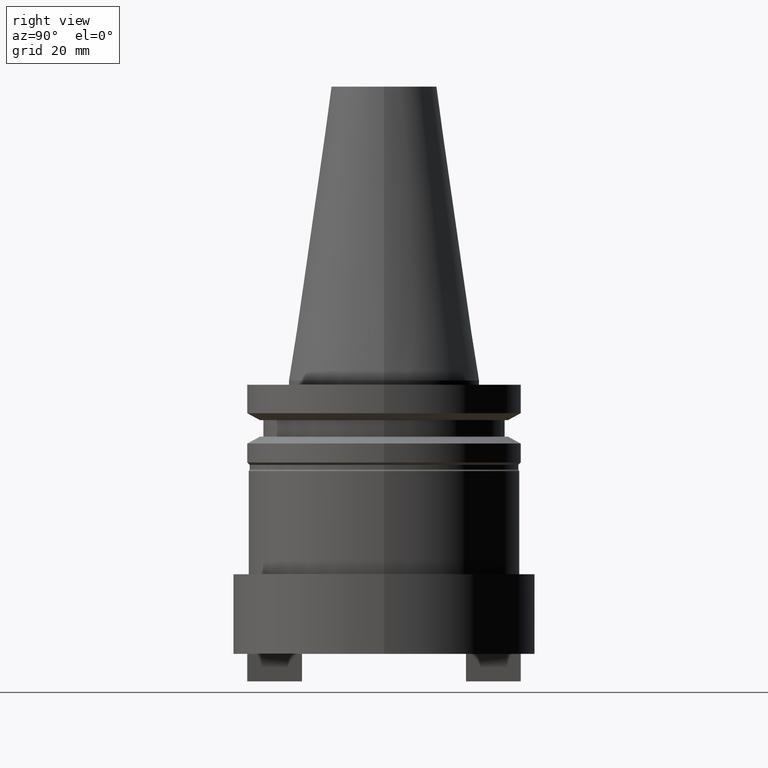
[diagram: clean part render]
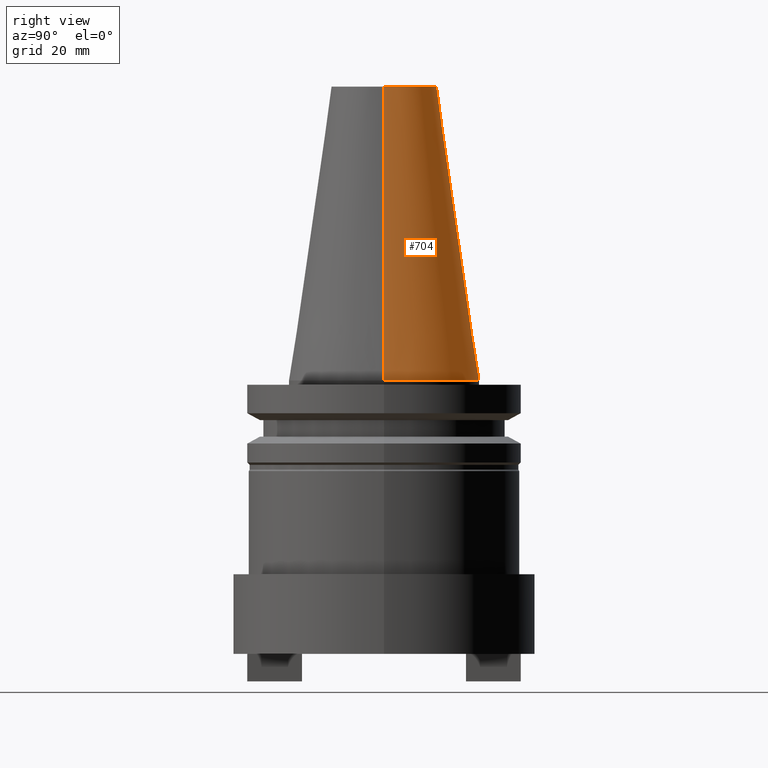
[diagram: same view with one face highlighted and labeled with its STEP entity id]
A machine part, right view. The second image highlights one B-rep face of the part: STEP entity #704.
In plain terms, the highlighted conical surface has half-angle 8.297 deg.
Its self-contained STEP definition (entity closure, byte-faithful):
#11 = FACE_OUTER_BOUND ( 'NONE', #387, .T. ) ;
#13 = VERTEX_POINT ( 'NONE', #530 ) ;
#45 = ORIENTED_EDGE ( 'NONE', *, *, #1108, .F. ) ;
#46 = VECTOR ( 'NONE', #1019, 999.9999999999998863 ) ;
#62 = VECTOR ( 'NONE', #1106, 999.9999999999998863 ) ;
#83 = ORIENTED_EDGE ( 'NONE', *, *, #1011, .F. ) ;
#105 = VERTEX_POINT ( 'NONE', #332 ) ;
#166 = DIRECTION ( 'NONE',  ( -0.000000000000000000, -0.000000000000000000, 1.000000000000000000 ) ) ;
#186 = EDGE_CURVE ( 'NONE', #13, #187, #440, .T. ) ;
#187 = VERTEX_POINT ( 'NONE', #257 ) ;
#257 = CARTESIAN_POINT ( 'NONE',  ( 22.22500000000000142, 2.721777511104992849E-15, 0.000000000000000000 ) ) ;
#309 = AXIS2_PLACEMENT_3D ( 'NONE', #575, #467, #936 ) ;
#332 = CARTESIAN_POINT ( 'NONE',  ( -12.27178102086201150, 0.000000000000000000, 68.25000000000000000 ) ) ;
#356 = LINE ( 'NONE', #812, #46 ) ;
#387 = EDGE_LOOP ( 'NONE', ( #45, #706, #869, #83 ) ) ;
#432 = CIRCLE ( 'NONE', #309, 22.22500000000000142 ) ;
#440 = LINE ( 'NONE', #1031, #62 ) ;
#467 = DIRECTION ( 'NONE',  ( -0.000000000000000000, -0.000000000000000000, 1.000000000000000000 ) ) ;
#471 = CONICAL_SURFACE ( 'NONE', #496, 22.22500000000000142, 0.1448138465474119174 ) ;
#477 = DIRECTION ( 'NONE',  ( 0.000000000000000000, 0.000000000000000000, -1.000000000000000000 ) ) ;
#496 = AXIS2_PLACEMENT_3D ( 'NONE', #659, #477, #1052 ) ;
#530 = CARTESIAN_POINT ( 'NONE',  ( 12.27178102086201150, 2.112318622904291439E-15, 68.25000000000000000 ) ) ;
#535 = AXIS2_PLACEMENT_3D ( 'NONE', #1013, #166, #923 ) ;
#575 = CARTESIAN_POINT ( 'NONE',  ( 0.000000000000000000, 0.000000000000000000, 0.000000000000000000 ) ) ;
#659 = CARTESIAN_POINT ( 'NONE',  ( 0.000000000000000000, 0.000000000000000000, 0.000000000000000000 ) ) ;
#704 = ADVANCED_FACE ( 'NONE', ( #11 ), #471, .T. ) ;
#706 = ORIENTED_EDGE ( 'NONE', *, *, #186, .T. ) ;
#717 = EDGE_CURVE ( 'NONE', #187, #833, #432, .T. ) ;
#809 = CIRCLE ( 'NONE', #535, 12.27178102086201150 ) ;
#812 = CARTESIAN_POINT ( 'NONE',  ( -22.22500000000000142, 0.000000000000000000, 0.000000000000000000 ) ) ;
#833 = VERTEX_POINT ( 'NONE', #894 ) ;
#869 = ORIENTED_EDGE ( 'NONE', *, *, #717, .T. ) ;
#894 = CARTESIAN_POINT ( 'NONE',  ( -22.22500000000000142, 0.000000000000000000, 0.000000000000000000 ) ) ;
#923 = DIRECTION ( 'NONE',  ( 1.000000000000000000, 0.000000000000000000, 0.000000000000000000 ) ) ;
#936 = DIRECTION ( 'NONE',  ( 1.000000000000000000, 0.000000000000000000, 0.000000000000000000 ) ) ;
#1011 = EDGE_CURVE ( 'NONE', #105, #833, #356, .T. ) ;
#1013 = CARTESIAN_POINT ( 'NONE',  ( 0.000000000000000000, 0.000000000000000000, 68.25000000000000000 ) ) ;
#1019 = DIRECTION ( 'NONE',  ( -0.1443082272672999711, 0.000000000000000000, -0.9895327864921755756 ) ) ;
#1031 = CARTESIAN_POINT ( 'NONE',  ( 22.22500000000000142, 2.721777511104992849E-15, 0.000000000000000000 ) ) ;
#1052 = DIRECTION ( 'NONE',  ( -1.000000000000000000, 0.000000000000000000, 0.000000000000000000 ) ) ;
#1106 = DIRECTION ( 'NONE',  ( 0.1443082272672999711, 1.767266086135276757E-17, -0.9895327864921755756 ) ) ;
#1108 = EDGE_CURVE ( 'NONE', #13, #105, #809, .T. ) ;